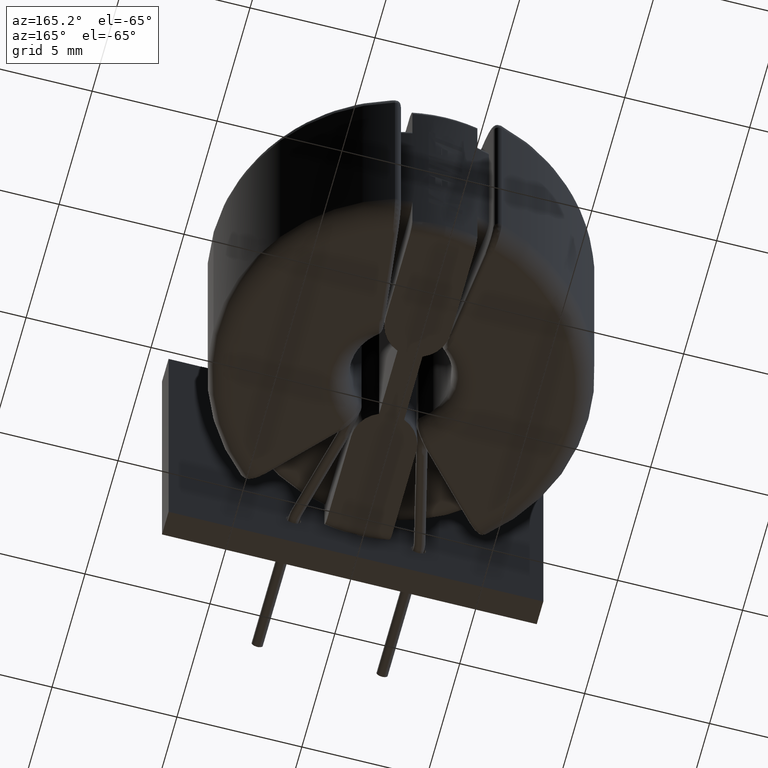
[diagram: clean part render]
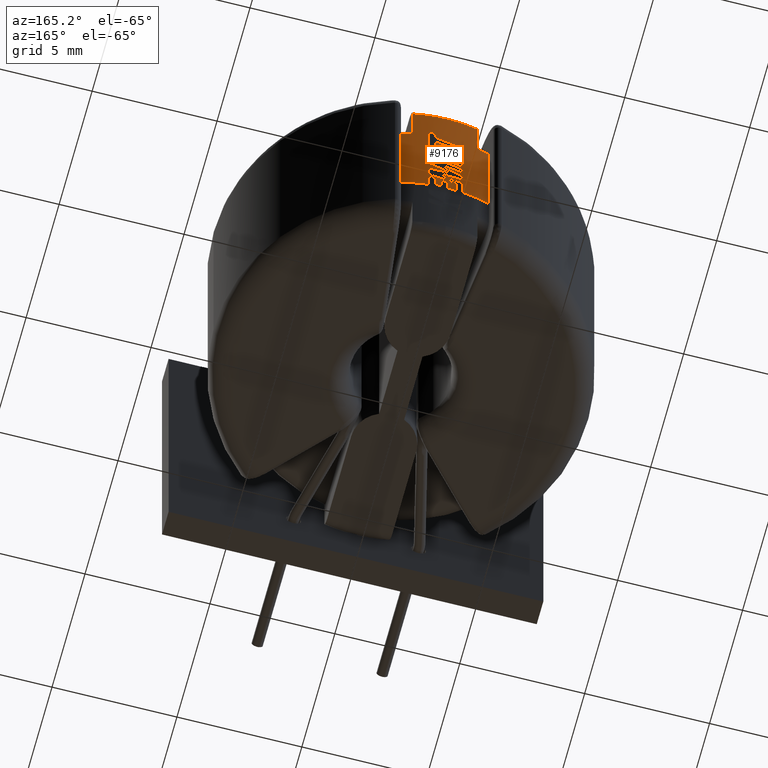
[diagram: same view with one face highlighted and labeled with its STEP entity id]
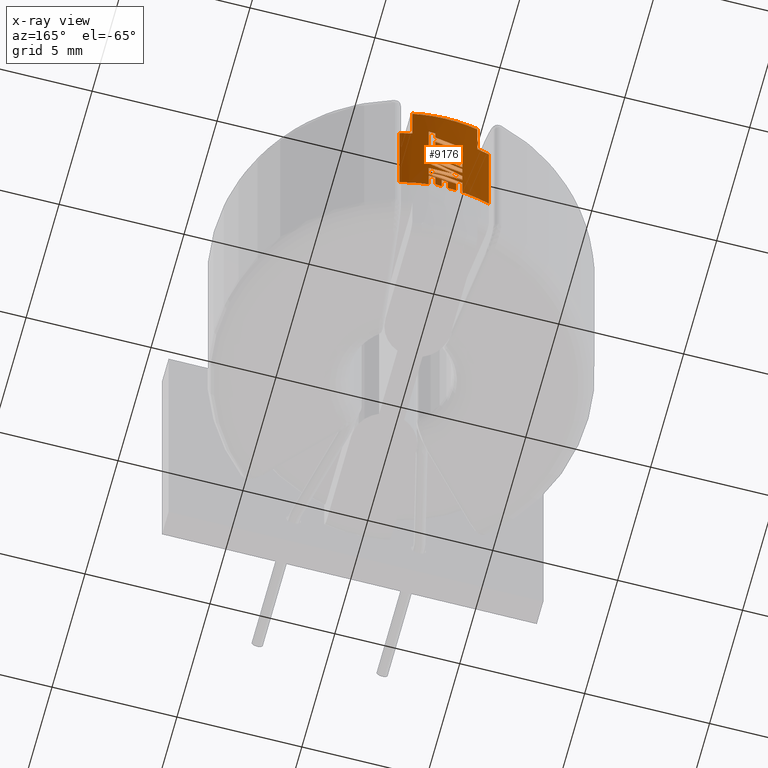
[diagram: x-ray of the same camera — body ghosted, the highlighted face saturated]
A machine part, auxiliary view. The second image highlights one B-rep face of the part: STEP entity #9176.
The next image is the same camera in x-ray: the body ghosted, the highlighted face saturated — about 0% of this face is hidden behind the body in this view.
In plain terms, the highlighted cylindrical surface (partial cylindrical patch) has radius 6.8 mm, axis along (0, 0, -1).
Its self-contained STEP definition (entity closure, byte-faithful):
#26 = DIRECTION ( 'NONE',  ( 0.0000000000000000000, 0.0000000000000000000, -1.000000000000000000 ) ) ;
#48 = CARTESIAN_POINT ( 'NONE',  ( 1.300999999999999046, 6.674383791781830055, 4.899999999999999467 ) ) ;
#51 = VERTEX_POINT ( 'NONE', #4222 ) ;
#58 = EDGE_CURVE ( 'NONE', #9147, #8497, #11557, .T. ) ;
#101 = CARTESIAN_POINT ( 'NONE',  ( 0.0000000000000000000, 0.0000000000000000000, 4.899999999999999467 ) ) ;
#152 = CARTESIAN_POINT ( 'NONE',  ( 0.1657448231678141648, 6.797979747954023821, 1.505122785420933695 ) ) ;
#158 = EDGE_CURVE ( 'NONE', #11961, #206, #3040, .T. ) ;
#206 = VERTEX_POINT ( 'NONE', #610 ) ;
#230 = CARTESIAN_POINT ( 'NONE',  ( 0.6703702798222870296, 6.766875474540002600, -1.399999999999999689 ) ) ;
#231 = EDGE_CURVE ( 'NONE', #5390, #2262, #324, .T. ) ;
#233 = EDGE_CURVE ( 'NONE', #2392, #4481, #8398, .T. ) ;
#240 = VERTEX_POINT ( 'NONE', #5614 ) ;
#324 =( BOUNDED_CURVE ( )  B_SPLINE_CURVE ( 3, ( #8632, #3724, #10489, #6632 ),
 .UNSPECIFIED., .F., .T. ) 
 B_SPLINE_CURVE_WITH_KNOTS ( ( 4, 4 ),
 ( 4.634515606831258516, 4.811133233297992362 ),
 .UNSPECIFIED. ) 
 CURVE ( )  GEOMETRIC_REPRESENTATION_ITEM ( )  RATIONAL_B_SPLINE_CURVE ( ( 1.000000000000000000, 0.9974022067229096900, 0.9974022067229096900, 1.000000000000000000 ) ) 
 REPRESENTATION_ITEM ( '' )  );
#354 = ORIENTED_EDGE ( 'NONE', *, *, #4188, .T. ) ;
#367 = CARTESIAN_POINT ( 'NONE',  ( 0.4133938508345821328, 6.787422598018500786, 2.192089153865898865 ) ) ;
#410 = CARTESIAN_POINT ( 'NONE',  ( -0.6703702798221423675, 6.766875474540016810, 0.7237001719797913069 ) ) ;
#418 = CARTESIAN_POINT ( 'NONE',  ( 0.4114982032729581629, 6.787538671728002626, 2.981526483648589743 ) ) ;
#458 = CARTESIAN_POINT ( 'NONE',  ( -0.6703702798221283787, 6.766875474540016810, 2.670566904199611624 ) ) ;
#491 = VECTOR ( 'NONE', #4505, 1000.000000000000000 ) ;
#506 = ORIENTED_EDGE ( 'NONE', *, *, #10479, .T. ) ;
#532 = CARTESIAN_POINT ( 'NONE',  ( 0.6703702798222002102, 6.766875474540003488, 0.09763589896193183848 ) ) ;
#545 = ORIENTED_EDGE ( 'NONE', *, *, #5762, .T. ) ;
#601 = CARTESIAN_POINT ( 'NONE',  ( 0.4114884892363169788, 6.787538377300029957, 3.103887281059684700 ) ) ;
#604 = CARTESIAN_POINT ( 'NONE',  ( -0.6703702798221470305, 6.766875474540023916, 0.3829972708428619477 ) ) ;
#610 = CARTESIAN_POINT ( 'NONE',  ( -0.4152446551201203206, 6.787309619900525171, 1.970416612737246442 ) ) ;
#635 = CARTESIAN_POINT ( 'NONE',  ( 0.6703702798222870296, 6.766875474540002600, 3.599999999999987210 ) ) ;
#662 = EDGE_CURVE ( 'NONE', #9083, #11961, #9734, .T. ) ;
#750 = CARTESIAN_POINT ( 'NONE',  ( 0.4151223552751882595, 6.787317101045950096, 1.577687358616442603 ) ) ;
#846 = EDGE_CURVE ( 'NONE', #9556, #8904, #6047, .T. ) ;
#856 = ORIENTED_EDGE ( 'NONE', *, *, #158, .T. ) ;
#857 = DIRECTION ( 'NONE',  ( -6.576008990187235647E-32, 1.184628465511692322E-16, 1.000000000000000000 ) ) ;
#877 = DIRECTION ( 'NONE',  ( -0.0000000000000000000, -0.0000000000000000000, 1.000000000000000000 ) ) ;
#899 = CARTESIAN_POINT ( 'NONE',  ( 0.0000000000000000000, 0.0000000000000000000, 3.100000000000000089 ) ) ;
#980 = VERTEX_POINT ( 'NONE', #11358 ) ;
#986 = CARTESIAN_POINT ( 'NONE',  ( 0.0000000000000000000, 0.0000000000000000000, -1.399999999999998579 ) ) ;
#987 = CARTESIAN_POINT ( 'NONE',  ( 0.4151671985522907837, 6.787314358216084642, -0.6795519127347516841 ) ) ;
#1057 = CARTESIAN_POINT ( 'NONE',  ( 0.5854358807702398915, 6.775289623296438357, -0.6311920275905625877 ) ) ;
#1067 = ORIENTED_EDGE ( 'NONE', *, *, #3467, .T. ) ;
#1126 = VERTEX_POINT ( 'NONE', #3302 ) ;
#1163 = VERTEX_POINT ( 'NONE', #1327 ) ;
#1182 = EDGE_CURVE ( 'NONE', #8036, #9552, #7076, .T. ) ;
#1197 = CARTESIAN_POINT ( 'NONE',  ( 0.6703702798220854131, 6.766875474540022140, 3.600000000000043610 ) ) ;
#1204 = ORIENTED_EDGE ( 'NONE', *, *, #6156, .T. ) ;
#1218 = CARTESIAN_POINT ( 'NONE',  ( 1.790637403355226587, 6.560001348300576574, 3.099999999999999201 ) ) ;
#1259 = VECTOR ( 'NONE', #10645, 1000.000000000000000 ) ;
#1264 = ORIENTED_EDGE ( 'NONE', *, *, #5170, .T. ) ;
#1327 = CARTESIAN_POINT ( 'NONE',  ( -0.6703702798221379267, 6.766875474540020363, 0.8850544308041168318 ) ) ;
#1369 = CARTESIAN_POINT ( 'NONE',  ( -0.6703702798221378156, 6.766875474540023916, 1.898023259321389489 ) ) ;
#1381 = CARTESIAN_POINT ( 'NONE',  ( 1.300999999999999046, 6.674383791781830055, 3.100000000000000089 ) ) ;
#1385 = EDGE_CURVE ( 'NONE', #10204, #12141, #9432, .T. ) ;
#1389 = CARTESIAN_POINT ( 'NONE',  ( 0.3094131752362639931, 6.802634210771450363, -0.5770906042204058117 ) ) ;
#1411 = CARTESIAN_POINT ( 'NONE',  ( 0.6703702798222188619, 6.766875474540003488, 1.270698448461876628 ) ) ;
#1512 =( BOUNDED_CURVE ( )  B_SPLINE_CURVE ( 3, ( #2813, #1835, #5900, #8792 ),
 .UNSPECIFIED., .F., .F. ) 
 B_SPLINE_CURVE_WITH_KNOTS ( ( 4, 4 ),
 ( 1.472052073881594092, 1.648669700348327050 ),
 .UNSPECIFIED. ) 
 CURVE ( )  GEOMETRIC_REPRESENTATION_ITEM ( )  RATIONAL_B_SPLINE_CURVE ( ( 1.000000000000000000, 0.9974022067229098010, 0.9974022067229098010, 1.000000000000000000 ) ) 
 REPRESENTATION_ITEM ( '' )  );
#1532 = VERTEX_POINT ( 'NONE', #532 ) ;
#1567 = EDGE_CURVE ( 'NONE', #11969, #1126, #8018, .T. ) ;
#1595 = CARTESIAN_POINT ( 'NONE',  ( 0.1657448231678141648, 6.797979747954023821, 1.505122785420933695 ) ) ;
#1718 = CARTESIAN_POINT ( 'NONE',  ( -1.790637403355226587, 6.560001348300575685, 3.099999999999999201 ) ) ;
#1719 = DIRECTION ( 'NONE',  ( -0.0000000000000000000, -0.0000000000000000000, -1.000000000000000000 ) ) ;
#1728 = VERTEX_POINT ( 'NONE', #9654 ) ;
#1740 = EDGE_CURVE ( 'NONE', #9147, #4124, #1930, .T. ) ;
#1765 = CARTESIAN_POINT ( 'NONE',  ( 0.4114982032762805053, 6.787537788381037274, 2.599690068830195155 ) ) ;
#1779 = DIRECTION ( 'NONE',  ( 0.0000000000000000000, 0.0000000000000000000, -1.000000000000000000 ) ) ;
#1798 = ORIENTED_EDGE ( 'NONE', *, *, #58, .T. ) ;
#1835 = CARTESIAN_POINT ( 'NONE',  ( -0.2714684467850607685, 6.806393260029164338, 0.4975487579555347151 ) ) ;
#1847 =( BOUNDED_CURVE ( )  B_SPLINE_CURVE ( 3, ( #3482, #11549, #12477, #7595 ),
 .UNSPECIFIED., .F., .T. ) 
 B_SPLINE_CURVE_WITH_KNOTS ( ( 4, 4 ),
 ( 4.613644727471385210, 4.651841837245695999 ),
 .UNSPECIFIED. ) 
 CURVE ( )  GEOMETRIC_REPRESENTATION_ITEM ( )  RATIONAL_B_SPLINE_CURVE ( ( 1.000000000000000000, 0.9998784187627531850, 0.9998784187627531850, 1.000000000000000000 ) ) 
 REPRESENTATION_ITEM ( '' )  );
#1852 = CARTESIAN_POINT ( 'NONE',  ( -0.08206727095332713717, 6.799504758659879577, -0.8583053624838021811 ) ) ;
#1874 = ORIENTED_EDGE ( 'NONE', *, *, #1385, .T. ) ;
#1892 = CARTESIAN_POINT ( 'NONE',  ( 1.790637403355225032, 6.560001348300566804, 3.600000000000000089 ) ) ;
#1904 =( BOUNDED_CURVE ( )  B_SPLINE_CURVE ( 3, ( #2087, #5954, #8958, #9945 ),
 .UNSPECIFIED., .F., .T. ) 
 B_SPLINE_CURVE_WITH_KNOTS ( ( 4, 4 ),
 ( 1.472052073881591427, 1.647821850982495784 ),
 .UNSPECIFIED. ) 
 CURVE ( )  GEOMETRIC_REPRESENTATION_ITEM ( )  RATIONAL_B_SPLINE_CURVE ( ( 1.000000000000000000, 0.9974270721496388825, 0.9974270721496388825, 1.000000000000000000 ) ) 
 REPRESENTATION_ITEM ( '' )  );
#1925 = CARTESIAN_POINT ( 'NONE',  ( 0.2489760919596331334, 6.795949897025361786, -1.338765766515399580 ) ) ;
#1930 = LINE ( 'NONE', #1892, #4475 ) ;
#1963 = EDGE_CURVE ( 'NONE', #3882, #51, #11145, .T. ) ;
#2087 = CARTESIAN_POINT ( 'NONE',  ( -0.6703702798221470305, 6.766875474540016810, -0.2631657934942448485 ) ) ;
#2110 = CARTESIAN_POINT ( 'NONE',  ( -0.6703702798221470305, 6.766875474540023916, 0.09426364943040335675 ) ) ;
#2149 = VECTOR ( 'NONE', #11265, 1000.000000000000000 ) ;
#2214 = VERTEX_POINT ( 'NONE', #48 ) ;
#2262 = VERTEX_POINT ( 'NONE', #2110 ) ;
#2264 = EDGE_CURVE ( 'NONE', #10316, #11611, #6586, .T. ) ;
#2265 = B_SPLINE_CURVE_WITH_KNOTS ( 'NONE', 3,
 ( #2542, #12099, #601, #10346 ),
 .UNSPECIFIED., .F., .F.,
 ( 4, 4 ),
 ( 2.000000006326825159E-07, 0.0003672823933821881231 ),
 .UNSPECIFIED. ) ;
#2278 = DIRECTION ( 'NONE',  ( -6.576008990187235647E-32, 1.184628465511692322E-16, 1.000000000000000000 ) ) ;
#2348 = ORIENTED_EDGE ( 'NONE', *, *, #11003, .T. ) ;
#2392 = VERTEX_POINT ( 'NONE', #6258 ) ;
#2457 = DIRECTION ( 'NONE',  ( -0.0000000000000000000, -0.0000000000000000000, 1.000000000000000000 ) ) ;
#2529 = LINE ( 'NONE', #5876, #3296 ) ;
#2542 = CARTESIAN_POINT ( 'NONE',  ( 0.4114690611629806538, 6.787539555074856068, 3.348608875873371638 ) ) ;
#2562 = ORIENTED_EDGE ( 'NONE', *, *, #4899, .T. ) ;
#2567 = EDGE_CURVE ( 'NONE', #5903, #1163, #7189, .T. ) ;
#2605 = CARTESIAN_POINT ( 'NONE',  ( 0.0005414521473948088071, 6.800501812519334166, 2.033299096523746741 ) ) ;
#2624 = CARTESIAN_POINT ( 'NONE',  ( -0.6703702798221331527, 6.766875474540016810, -1.399999999999999245 ) ) ;
#2643 = CARTESIAN_POINT ( 'NONE',  ( 0.4127619736790560934, 6.787461083043823784, 2.327954972180605875 ) ) ;
#2684 = CARTESIAN_POINT ( 'NONE',  ( 0.3519906907306294408, 6.798416207782705278, 0.3632274206541954431 ) ) ;
#2695 = CARTESIAN_POINT ( 'NONE',  ( 0.4133938508345821328, 6.787422598018500786, 2.192089153865898865 ) ) ;
#2729 = CARTESIAN_POINT ( 'NONE',  ( 0.03218006170106237074, 6.807446277733856022, 0.2046118142603328693 ) ) ;
#2732 = VERTEX_POINT ( 'NONE', #11388 ) ;
#2749 = CARTESIAN_POINT ( 'NONE',  ( 0.4114982032762805053, 6.787537788381037274, 2.599690068830195155 ) ) ;
#2788 =( BOUNDED_CURVE ( )  B_SPLINE_CURVE ( 3, ( #5179, #11943, #3121, #4223 ),
 .UNSPECIFIED., .F., .T. ) 
 B_SPLINE_CURVE_WITH_KNOTS ( ( 4, 4 ),
 ( 4.773492386626295492, 4.811133233297991474 ),
 .UNSPECIFIED. ) 
 CURVE ( )  GEOMETRIC_REPRESENTATION_ITEM ( )  RATIONAL_B_SPLINE_CURVE ( ( 1.000000000000000000, 0.9998819340402104183, 0.9998819340402104183, 1.000000000000000000 ) ) 
 REPRESENTATION_ITEM ( '' )  );
#2811 = EDGE_CURVE ( 'NONE', #4090, #4910, #5059, .T. ) ;
#2813 = CARTESIAN_POINT ( 'NONE',  ( -0.6703702798221470305, 6.766875474540023916, 0.3829972708428619477 ) ) ;
#2877 = CARTESIAN_POINT ( 'NONE',  ( -0.08206727095612345591, 6.799504758659840498, 3.600000000000000089 ) ) ;
#2940 = CARTESIAN_POINT ( 'NONE',  ( 0.5003581361365246893, 6.782103389483500777, -0.6553558955739131608 ) ) ;
#2941 = ORIENTED_EDGE ( 'NONE', *, *, #11224, .T. ) ;
#2942 = VECTOR ( 'NONE', #1779, 1000.000000000000000 ) ;
#2985 = ORIENTED_EDGE ( 'NONE', *, *, #662, .T. ) ;
#3014 = CIRCLE ( 'NONE', #9377, 6.800000000000019362 ) ;
#3040 = LINE ( 'NONE', #4415, #491 ) ;
#3070 =( BOUNDED_CURVE ( )  B_SPLINE_CURVE ( 3, ( #8270, #8354, #4450, #3454 ),
 .UNSPECIFIED., .F., .T. ) 
 B_SPLINE_CURVE_WITH_KNOTS ( ( 4, 4 ),
 ( 1.472052073881594980, 1.669540579708211014 ),
 .UNSPECIFIED. ) 
 CURVE ( )  GEOMETRIC_REPRESENTATION_ITEM ( )  RATIONAL_B_SPLINE_CURVE ( ( 1.000000000000000000, 0.9967524975039229185, 0.9967524975039229185, 1.000000000000000000 ) ) 
 REPRESENTATION_ITEM ( '' )  );
#3119 = CIRCLE ( 'NONE', #8342, 6.800000000000019362 ) ;
#3121 = CARTESIAN_POINT ( 'NONE',  ( -0.5854616264467014108, 6.775287072763862106, 1.922116574757855023 ) ) ;
#3182 = CARTESIAN_POINT ( 'NONE',  ( -0.6703702798221196080, 6.766875474540019475, 3.600000000000000089 ) ) ;
#3188 = DIRECTION ( 'NONE',  ( -0.0000000000000000000, -0.0000000000000000000, -1.000000000000000000 ) ) ;
#3199 = DIRECTION ( 'NONE',  ( -6.576008990187235647E-32, 1.184628465511692322E-16, 1.000000000000000000 ) ) ;
#3207 = LINE ( 'NONE', #6210, #1259 ) ;
#3246 = DIRECTION ( 'NONE',  ( 0.0000000000000000000, 0.0000000000000000000, -1.000000000000000000 ) ) ;
#3290 =( BOUNDED_CURVE ( )  B_SPLINE_CURVE ( 3, ( #9533, #12441, #9621, #2749 ),
 .UNSPECIFIED., .F., .F. ) 
 B_SPLINE_CURVE_WITH_KNOTS ( ( 4, 4 ),
 ( 1.472052073881595868, 1.631347763406784113 ),
 .UNSPECIFIED. ) 
 CURVE ( )  GEOMETRIC_REPRESENTATION_ITEM ( )  RATIONAL_B_SPLINE_CURVE ( ( 1.000000000000000000, 0.9978865245811500140, 0.9978865245811500140, 1.000000000000000000 ) ) 
 REPRESENTATION_ITEM ( '' )  );
#3296 = VECTOR ( 'NONE', #26, 1000.000000000000000 ) ;
#3302 = CARTESIAN_POINT ( 'NONE',  ( -0.08206727095614173295, 6.799504758659841386, 2.009699322137072475 ) ) ;
#3386 = LINE ( 'NONE', #8386, #8269 ) ;
#3410 = CARTESIAN_POINT ( 'NONE',  ( -0.2241848006403508731, 6.811077482639184666, 0.8519817871776028673 ) ) ;
#3454 = CARTESIAN_POINT ( 'NONE',  ( 0.6703702798222188619, 6.766875474540003488, 1.270698448461876628 ) ) ;
#3467 = EDGE_CURVE ( 'NONE', #4276, #3506, #5239, .T. ) ;
#3482 = CARTESIAN_POINT ( 'NONE',  ( 0.6703702798221541359, 6.766875474540023916, 3.423012609376339555 ) ) ;
#3489 = CARTESIAN_POINT ( 'NONE',  ( 0.6703702798221541359, 6.766875474540023916, 3.423012609376339555 ) ) ;
#3506 = VERTEX_POINT ( 'NONE', #3489 ) ;
#3517 = EDGE_CURVE ( 'NONE', #6967, #8705, #3386, .T. ) ;
#3553 = CARTESIAN_POINT ( 'NONE',  ( -1.790637403355225032, 6.560001348300566804, -1.399999999999999245 ) ) ;
#3572 = VERTEX_POINT ( 'NONE', #5376 ) ;
#3610 = VECTOR ( 'NONE', #4528, 1000.000000000000000 ) ;
#3626 =( BOUNDED_CURVE ( )  B_SPLINE_CURVE ( 3, ( #12070, #9183, #1389, #12108 ),
 .UNSPECIFIED., .F., .F. ) 
 B_SPLINE_CURVE_WITH_KNOTS ( ( 4, 4 ),
 ( 1.509685712992849149, 1.669540579708206574 ),
 .UNSPECIFIED. ) 
 CURVE ( )  GEOMETRIC_REPRESENTATION_ITEM ( )  RATIONAL_B_SPLINE_CURVE ( ( 1.000000000000000000, 0.9978716685460599090, 0.9978716685460599090, 1.000000000000000000 ) ) 
 REPRESENTATION_ITEM ( '' )  );
#3632 = ORIENTED_EDGE ( 'NONE', *, *, #2811, .T. ) ;
#3646 = ORIENTED_EDGE ( 'NONE', *, *, #11810, .T. ) ;
#3653 = CARTESIAN_POINT ( 'NONE',  ( 0.1657448231678324280, 6.797979747954023821, 3.600000000000000089 ) ) ;
#3724 = CARTESIAN_POINT ( 'NONE',  ( 0.1293642242125388753, 6.810576277031495707, 0.5164467030518856694 ) ) ;
#3725 = VERTEX_POINT ( 'NONE', #410 ) ;
#3797 =( BOUNDED_CURVE ( )  B_SPLINE_CURVE ( 3, ( #4763, #12387, #6590, #8543 ),
 .UNSPECIFIED., .F., .T. ) 
 B_SPLINE_CURVE_WITH_KNOTS ( ( 4, 4 ),
 ( 4.688005731007922172, 4.724457989696520421 ),
 .UNSPECIFIED. ) 
 CURVE ( )  GEOMETRIC_REPRESENTATION_ITEM ( )  RATIONAL_B_SPLINE_CURVE ( ( 1.000000000000000000, 0.9998892724683239308, 0.9998892724683239308, 1.000000000000000000 ) ) 
 REPRESENTATION_ITEM ( '' )  );
#3841 = CARTESIAN_POINT ( 'NONE',  ( 0.4151671985522907837, 6.787314358216084642, -1.290407012552380328 ) ) ;
#3873 = EDGE_CURVE ( 'NONE', #8853, #6243, #12167, .T. ) ;
#3882 = VERTEX_POINT ( 'NONE', #6722 ) ;
#3920 = VERTEX_POINT ( 'NONE', #604 ) ;
#3934 = VECTOR ( 'NONE', #10636, 1000.000000000000000 ) ;
#4008 =( BOUNDED_CURVE ( )  B_SPLINE_CURVE ( 3, ( #8414, #6544, #11407, #750 ),
 .UNSPECIFIED., .F., .F. ) 
 B_SPLINE_CURVE_WITH_KNOTS ( ( 4, 4 ),
 ( 4.773219702901219108, 4.773474367737464696 ),
 .UNSPECIFIED. ) 
 CURVE ( )  GEOMETRIC_REPRESENTATION_ITEM ( )  RATIONAL_B_SPLINE_CURVE ( ( 1.000000000000000000, 0.9999999945954850533, 0.9999999945954850533, 1.000000000000000000 ) ) 
 REPRESENTATION_ITEM ( '' )  );
#4076 = CARTESIAN_POINT ( 'NONE',  ( 0.1657896664456502689, 6.797978654460444581, 3.600000000000000089 ) ) ;
#4090 = VERTEX_POINT ( 'NONE', #1852 ) ;
#4091 = CARTESIAN_POINT ( 'NONE',  ( 0.0000000000000000000, 0.0000000000000000000, 4.899999999999999467 ) ) ;
#4124 = VERTEX_POINT ( 'NONE', #1218 ) ;
#4188 = EDGE_CURVE ( 'NONE', #12141, #6967, #6460, .T. ) ;
#4197 = ORIENTED_EDGE ( 'NONE', *, *, #10212, .T. ) ;
#4198 = VERTEX_POINT ( 'NONE', #9974 ) ;
#4207 = CARTESIAN_POINT ( 'NONE',  ( -0.1932149447257128505, 6.798163251214348612, 1.402678183447211069 ) ) ;
#4222 = CARTESIAN_POINT ( 'NONE',  ( 0.6703702798222140880, 6.766875474540009705, 1.109172968781247937 ) ) ;
#4223 = CARTESIAN_POINT ( 'NONE',  ( -0.6703702798221378156, 6.766875474540023916, 1.898023259321389489 ) ) ;
#4276 = VERTEX_POINT ( 'NONE', #1411 ) ;
#4385 = CARTESIAN_POINT ( 'NONE',  ( 0.05070808307212577859, 6.809410884782006512, 2.877825205905440775 ) ) ;
#4415 = CARTESIAN_POINT ( 'NONE',  ( -0.4152446551200899560, 6.787309619900524282, 3.600000000000002753 ) ) ;
#4448 = ORIENTED_EDGE ( 'NONE', *, *, #10846, .T. ) ;
#4450 = CARTESIAN_POINT ( 'NONE',  ( 0.2241848006404323079, 6.811077482639182890, 1.142359852620586036 ) ) ;
#4475 = VECTOR ( 'NONE', #877, 1000.000000000000000 ) ;
#4481 = VERTEX_POINT ( 'NONE', #367 ) ;
#4494 = VECTOR ( 'NONE', #4769, 1000.000000000000000 ) ;
#4505 = DIRECTION ( 'NONE',  ( -0.0000000000000000000, -0.0000000000000000000, 1.000000000000000000 ) ) ;
#4507 = CYLINDRICAL_SURFACE ( 'NONE', #5164, 6.800000000000019362 ) ;
#4528 = DIRECTION ( 'NONE',  ( 0.0000000000000000000, 0.0000000000000000000, -1.000000000000000000 ) ) ;
#4603 = DIRECTION ( 'NONE',  ( -0.0000000000000000000, -0.0000000000000000000, -1.000000000000000000 ) ) ;
#4609 = VECTOR ( 'NONE', #7761, 1000.000000000000000 ) ;
#4623 = CARTESIAN_POINT ( 'NONE',  ( -1.300999999999999490, 6.674383791781830055, 3.100000000000000089 ) ) ;
#4749 = DIRECTION ( 'NONE',  ( -5.551115123125774814E-16, 1.000000000000000000, -1.275531967630001548E-16 ) ) ;
#4753 = CARTESIAN_POINT ( 'NONE',  ( -0.4152446551201250391, 6.787309619900528723, 1.339292352362078997 ) ) ;
#4763 = CARTESIAN_POINT ( 'NONE',  ( 0.1657896664456318669, 6.797978654460443693, -0.7875100603410228883 ) ) ;
#4765 = CARTESIAN_POINT ( 'NONE',  ( 0.3321112713423204910, 6.792394732396955348, -1.314574859024228326 ) ) ;
#4769 = DIRECTION ( 'NONE',  ( -0.0000000000000000000, -0.0000000000000000000, 1.000000000000000000 ) ) ;
#4795 = CARTESIAN_POINT ( 'NONE',  ( -0.08206727095330869359, 6.799504758659874248, -1.399999999999999245 ) ) ;
#4867 = EDGE_CURVE ( 'NONE', #980, #3882, #8715, .T. ) ;
#4896 = ORIENTED_EDGE ( 'NONE', *, *, #11514, .T. ) ;
#4899 = EDGE_CURVE ( 'NONE', #5488, #4124, #3119, .T. ) ;
#4910 = VERTEX_POINT ( 'NONE', #4795 ) ;
#4922 = DIRECTION ( 'NONE',  ( -0.0000000000000000000, -0.0000000000000000000, 1.000000000000000000 ) ) ;
#5025 = CARTESIAN_POINT ( 'NONE',  ( -0.2733883192480867086, 6.806203065094277527, -0.4249994308079859118 ) ) ;
#5059 = LINE ( 'NONE', #11636, #4609 ) ;
#5160 = CARTESIAN_POINT ( 'NONE',  ( 0.0000000000000000000, 0.0000000000000000000, -1.399999999999998579 ) ) ;
#5164 = AXIS2_PLACEMENT_3D ( 'NONE', #9953, #3246, #7139 ) ;
#5170 = EDGE_CURVE ( 'NONE', #9552, #1728, #11808, .T. ) ;
#5179 = CARTESIAN_POINT ( 'NONE',  ( -0.4152446551201203206, 6.787309619900525171, 1.970416612737246442 ) ) ;
#5181 = ORIENTED_EDGE ( 'NONE', *, *, #846, .F. ) ;
#5193 = ORIENTED_EDGE ( 'NONE', *, *, #3517, .T. ) ;
#5239 = LINE ( 'NONE', #1197, #10568 ) ;
#5314 = CARTESIAN_POINT ( 'NONE',  ( 0.1657448231678141926, 6.797979747954023821, 2.080494624278301341 ) ) ;
#5340 = DIRECTION ( 'NONE',  ( 9.214851104388800863E-15, 1.000000000000000000, 0.0000000000000000000 ) ) ;
#5357 = VECTOR ( 'NONE', #9081, 1000.000000000000000 ) ;
#5374 = LINE ( 'NONE', #11027, #2149 ) ;
#5376 = CARTESIAN_POINT ( 'NONE',  ( 0.5232557993236768290, 6.779838004589363365, -0.1962596263430867738 ) ) ;
#5379 = ORIENTED_EDGE ( 'NONE', *, *, #231, .T. ) ;
#5390 = VERTEX_POINT ( 'NONE', #5445 ) ;
#5410 = ORIENTED_EDGE ( 'NONE', *, *, #2567, .T. ) ;
#5414 = FACE_OUTER_BOUND ( 'NONE', #11140, .T. ) ;
#5425 = CARTESIAN_POINT ( 'NONE',  ( 0.2241848006404265625, 6.811077482639182001, 0.9808913535834262731 ) ) ;
#5445 = CARTESIAN_POINT ( 'NONE',  ( 0.5290038919167789899, 6.779391925706680588, 0.7274180871905704393 ) ) ;
#5488 = VERTEX_POINT ( 'NONE', #1381 ) ;
#5571 = EDGE_CURVE ( 'NONE', #6062, #8036, #2265, .T. ) ;
#5589 = CARTESIAN_POINT ( 'NONE',  ( -1.300999999999999046, 6.674383791781829167, 3.600000000000000089 ) ) ;
#5593 = EDGE_CURVE ( 'NONE', #51, #3725, #5680, .T. ) ;
#5614 = CARTESIAN_POINT ( 'NONE',  ( -3.774758283725537759E-15, 6.800000000000018474, 4.899999999999999467 ) ) ;
#5621 = CARTESIAN_POINT ( 'NONE',  ( 0.0000000000000000000, 0.0000000000000000000, 3.100000000000000089 ) ) ;
#5680 =( BOUNDED_CURVE ( )  B_SPLINE_CURVE ( 3, ( #12277, #5425, #3410, #11263 ),
 .UNSPECIFIED., .F., .T. ) 
 B_SPLINE_CURVE_WITH_KNOTS ( ( 4, 4 ),
 ( 4.613644727471376328, 4.811133233297992362 ),
 .UNSPECIFIED. ) 
 CURVE ( )  GEOMETRIC_REPRESENTATION_ITEM ( )  RATIONAL_B_SPLINE_CURVE ( ( 1.000000000000000000, 0.9967524975039229185, 0.9967524975039229185, 1.000000000000000000 ) ) 
 REPRESENTATION_ITEM ( '' )  );
#5703 = CARTESIAN_POINT ( 'NONE',  ( 0.6703702798222764825, 6.766875474540003488, 3.599999999999988542 ) ) ;
#5734 = CARTESIAN_POINT ( 'NONE',  ( 0.4121300911555147994, 6.787499479831581084, 2.463821944718518342 ) ) ;
#5736 = EDGE_CURVE ( 'NONE', #7689, #6530, #6450, .T. ) ;
#5762 = EDGE_CURVE ( 'NONE', #3920, #5390, #1512, .T. ) ;
#5837 = EDGE_CURVE ( 'NONE', #2262, #4198, #9212, .T. ) ;
#5875 = CARTESIAN_POINT ( 'NONE',  ( -1.300999999999999490, 6.674383791781830055, 4.899999999999999467 ) ) ;
#5876 = CARTESIAN_POINT ( 'NONE',  ( 1.300999999999998602, 6.674383791781830055, 3.600000000000000089 ) ) ;
#5900 = CARTESIAN_POINT ( 'NONE',  ( 0.1293642242125361552, 6.810576277031498371, 0.6126547182278526682 ) ) ;
#5903 = VERTEX_POINT ( 'NONE', #1369 ) ;
#5934 = ORIENTED_EDGE ( 'NONE', *, *, #7660, .T. ) ;
#5954 = CARTESIAN_POINT ( 'NONE',  ( -0.2733883192480854318, 6.806203065094278415, -0.2409138153628951062 ) ) ;
#5956 = CARTESIAN_POINT ( 'NONE',  ( 0.2489312385748593814, 6.795951539835905386, 1.529328601713461744 ) ) ;
#6001 = DIRECTION ( 'NONE',  ( -0.0000000000000000000, -0.0000000000000000000, 1.000000000000000000 ) ) ;
#6047 = LINE ( 'NONE', #5589, #11044 ) ;
#6061 = CARTESIAN_POINT ( 'NONE',  ( -0.08206727095614176071, 6.799504758659841386, 1.434409016508021439 ) ) ;
#6062 = VERTEX_POINT ( 'NONE', #6816 ) ;
#6068 = DIRECTION ( 'NONE',  ( -5.551115123125774814E-16, 1.000000000000000000, 0.0000000000000000000 ) ) ;
#6148 = CARTESIAN_POINT ( 'NONE',  ( -0.6703702798220845249, 6.766875474540023028, 3.600000000000008971 ) ) ;
#6156 = EDGE_CURVE ( 'NONE', #4198, #3572, #1904, .T. ) ;
#6210 = CARTESIAN_POINT ( 'NONE',  ( -0.4152935750536378978, 6.787306626823276900, 3.600000000000000089 ) ) ;
#6243 = VERTEX_POINT ( 'NONE', #1595 ) ;
#6258 = CARTESIAN_POINT ( 'NONE',  ( 0.4114982032762805053, 6.787537788381037274, 2.599690068830195155 ) ) ;
#6315 = DIRECTION ( 'NONE',  ( -0.0000000000000000000, -0.0000000000000000000, 1.000000000000000000 ) ) ;
#6341 = AXIS2_PLACEMENT_3D ( 'NONE', #12028, #3199, #7179 ) ;
#6383 = CARTESIAN_POINT ( 'NONE',  ( -0.08206727095614173295, 6.799504758659841386, 2.009699322137072475 ) ) ;
#6405 = LINE ( 'NONE', #635, #12461 ) ;
#6450 =( BOUNDED_CURVE ( )  B_SPLINE_CURVE ( 3, ( #11719, #1057, #2940, #987 ),
 .UNSPECIFIED., .F., .F. ) 
 B_SPLINE_CURVE_WITH_KNOTS ( ( 4, 4 ),
 ( 4.613644727471379881, 4.651296986108224729 ),
 .UNSPECIFIED. ) 
 CURVE ( )  GEOMETRIC_REPRESENTATION_ITEM ( )  RATIONAL_B_SPLINE_CURVE ( ( 1.000000000000000000, 0.9998818624409141487, 0.9998818624409141487, 1.000000000000000000 ) ) 
 REPRESENTATION_ITEM ( '' )  );
#6460 = CIRCLE ( 'NONE', #10275, 6.800000000000019362 ) ;
#6530 = VERTEX_POINT ( 'NONE', #7852 ) ;
#6544 = CARTESIAN_POINT ( 'NONE',  ( 0.4139700234576371707, 6.787387505725959613, 1.987286964382801502 ) ) ;
#6556 = LINE ( 'NONE', #3653, #6997 ) ;
#6586 = LINE ( 'NONE', #4076, #9019 ) ;
#6590 = CARTESIAN_POINT ( 'NONE',  ( 0.0005564057461872313039, 6.800501993003188694, -0.8347055866717052464 ) ) ;
#6595 = CARTESIAN_POINT ( 'NONE',  ( 0.03218006170105781882, 6.807446277733857798, 0.06328185432570962443 ) ) ;
#6606 = CARTESIAN_POINT ( 'NONE',  ( -0.6703702798221331527, 6.766875474540016810, 3.600000000000000089 ) ) ;
#6632 = CARTESIAN_POINT ( 'NONE',  ( -0.6703702798221470305, 6.766875474540023916, 0.09426364943040335675 ) ) ;
#6708 = ORIENTED_EDGE ( 'NONE', *, *, #1567, .T. ) ;
#6722 = CARTESIAN_POINT ( 'NONE',  ( 0.6703702798222046511, 6.766875474540009705, 0.5211332780687184529 ) ) ;
#6745 = CARTESIAN_POINT ( 'NONE',  ( -0.4152935750536563275, 6.787306626823276900, -0.7853983497317109652 ) ) ;
#6778 = EDGE_CURVE ( 'NONE', #2214, #5488, #2529, .T. ) ;
#6811 = ORIENTED_EDGE ( 'NONE', *, *, #8029, .T. ) ;
#6816 = CARTESIAN_POINT ( 'NONE',  ( 0.4114690611629806538, 6.787539555074856068, 3.348608875873371638 ) ) ;
#6859 = CIRCLE ( 'NONE', #7513, 6.800000000000019362 ) ;
#6905 = EDGE_CURVE ( 'NONE', #10455, #10300, #3626, .T. ) ;
#6932 = CARTESIAN_POINT ( 'NONE',  ( 0.6703702798221907733, 6.766875474540003488, -0.6070688727658430928 ) ) ;
#6967 = VERTEX_POINT ( 'NONE', #3553 ) ;
#6983 = EDGE_CURVE ( 'NONE', #4481, #8853, #4008, .T. ) ;
#6997 = VECTOR ( 'NONE', #10470, 1000.000000000000000 ) ;
#7056 =( BOUNDED_CURVE ( )  B_SPLINE_CURVE ( 3, ( #3841, #4765, #1925, #11612 ),
 .UNSPECIFIED., .F., .F. ) 
 B_SPLINE_CURVE_WITH_KNOTS ( ( 4, 4 ),
 ( 4.651296986108224729, 4.688005731007922172 ),
 .UNSPECIFIED. ) 
 CURVE ( )  GEOMETRIC_REPRESENTATION_ITEM ( )  RATIONAL_B_SPLINE_CURVE ( ( 1.000000000000000000, 0.9998877088231259425, 0.9998877088231259425, 1.000000000000000000 ) ) 
 REPRESENTATION_ITEM ( '' )  );
#7076 =( BOUNDED_CURVE ( )  B_SPLINE_CURVE ( 3, ( #418, #4385, #11084, #458 ),
 .UNSPECIFIED., .F., .F. ) 
 B_SPLINE_CURVE_WITH_KNOTS ( ( 4, 4 ),
 ( 4.651837551036502205, 4.811133233297989698 ),
 .UNSPECIFIED. ) 
 CURVE ( )  GEOMETRIC_REPRESENTATION_ITEM ( )  RATIONAL_B_SPLINE_CURVE ( ( 1.000000000000000000, 0.9978865247737923605, 0.9978865247737923605, 1.000000000000000000 ) ) 
 REPRESENTATION_ITEM ( '' )  );
#7092 = CARTESIAN_POINT ( 'NONE',  ( 1.790637403355225032, 6.560001348300566804, -1.399999999999999245 ) ) ;
#7139 = DIRECTION ( 'NONE',  ( 5.551115123125774814E-16, -1.000000000000000000, 0.0000000000000000000 ) ) ;
#7178 = ORIENTED_EDGE ( 'NONE', *, *, #10658, .T. ) ;
#7179 = DIRECTION ( 'NONE',  ( -5.551115123125774814E-16, 1.000000000000000000, -1.275531967630001548E-16 ) ) ;
#7189 = LINE ( 'NONE', #3182, #12339 ) ;
#7235 = CARTESIAN_POINT ( 'NONE',  ( 0.08315462776469624562, 6.799993419344646739, 2.056900142910722984 ) ) ;
#7513 = AXIS2_PLACEMENT_3D ( 'NONE', #986, #857, #4749 ) ;
#7595 = CARTESIAN_POINT ( 'NONE',  ( 0.4114690611629806538, 6.787539555074856068, 3.348608875873371638 ) ) ;
#7639 = EDGE_CURVE ( 'NONE', #1126, #9083, #9343, .T. ) ;
#7660 = EDGE_CURVE ( 'NONE', #1728, #2392, #3290, .T. ) ;
#7689 = VERTEX_POINT ( 'NONE', #6932 ) ;
#7756 = CARTESIAN_POINT ( 'NONE',  ( -0.08206727095614176071, 6.799504758659841386, 1.434409016508021439 ) ) ;
#7757 = EDGE_CURVE ( 'NONE', #3572, #10204, #12490, .T. ) ;
#7761 = DIRECTION ( 'NONE',  ( 0.0000000000000000000, 0.0000000000000000000, -1.000000000000000000 ) ) ;
#7772 = ORIENTED_EDGE ( 'NONE', *, *, #8413, .T. ) ;
#7797 = CARTESIAN_POINT ( 'NONE',  ( -0.6703702798221518044, 6.766875474540023916, -0.5389845515424422917 ) ) ;
#7826 = CARTESIAN_POINT ( 'NONE',  ( 0.4151223552751882595, 6.787317101045950096, 1.577687358616442603 ) ) ;
#7852 = CARTESIAN_POINT ( 'NONE',  ( 0.4151671985522907837, 6.787314358216084642, -0.6795519127347516841 ) ) ;
#7880 = CARTESIAN_POINT ( 'NONE',  ( 0.5232557993236768290, 6.779838004589363365, -0.1962596263430867738 ) ) ;
#7922 = ORIENTED_EDGE ( 'NONE', *, *, #3873, .T. ) ;
#8018 =( BOUNDED_CURVE ( )  B_SPLINE_CURVE ( 3, ( #5314, #7235, #2605, #6383 ),
 .UNSPECIFIED., .F., .F. ) 
 B_SPLINE_CURVE_WITH_KNOTS ( ( 4, 4 ),
 ( 4.688012327567942172, 4.724457989696934312 ),
 .UNSPECIFIED. ) 
 CURVE ( )  GEOMETRIC_REPRESENTATION_ITEM ( )  RATIONAL_B_SPLINE_CURVE ( ( 1.000000000000000000, 0.9998893125390623249, 0.9998893125390623249, 1.000000000000000000 ) ) 
 REPRESENTATION_ITEM ( '' )  );
#8029 = EDGE_CURVE ( 'NONE', #2732, #10455, #3207, .T. ) ;
#8036 = VERTEX_POINT ( 'NONE', #12188 ) ;
#8098 = CARTESIAN_POINT ( 'NONE',  ( -0.3042963284136805946, 6.794097390348519561, 1.370966275114576804 ) ) ;
#8236 = LINE ( 'NONE', #6148, #5357 ) ;
#8251 = VERTEX_POINT ( 'NONE', #11155 ) ;
#8269 = VECTOR ( 'NONE', #2457, 1000.000000000000000 ) ;
#8270 = CARTESIAN_POINT ( 'NONE',  ( -0.6703702798221379267, 6.766875474540020363, 0.8850544308041168318 ) ) ;
#8342 = AXIS2_PLACEMENT_3D ( 'NONE', #899, #1719, #12452 ) ;
#8354 = CARTESIAN_POINT ( 'NONE',  ( -0.2241848006403450444, 6.811077482639186442, 1.013393026645400541 ) ) ;
#8386 = CARTESIAN_POINT ( 'NONE',  ( -1.790637403355225032, 6.560001348300566804, 3.600000000000000089 ) ) ;
#8398 =( BOUNDED_CURVE ( )  B_SPLINE_CURVE ( 3, ( #1765, #5734, #2643, #2695 ),
 .UNSPECIFIED., .F., .T. ) 
 B_SPLINE_CURVE_WITH_KNOTS ( ( 4, 4 ),
 ( 4.772940416996579671, 4.773219702901219108 ),
 .UNSPECIFIED. ) 
 CURVE ( )  GEOMETRIC_REPRESENTATION_ITEM ( )  RATIONAL_B_SPLINE_CURVE ( ( 1.000000000000000000, 0.9999999934999485030, 0.9999999934999485030, 1.000000000000000000 ) ) 
 REPRESENTATION_ITEM ( '' )  );
#8413 = EDGE_CURVE ( 'NONE', #8251, #10316, #7056, .T. ) ;
#8414 = CARTESIAN_POINT ( 'NONE',  ( 0.4133938508345821328, 6.787422598018500786, 2.192089153865898865 ) ) ;
#8497 = VERTEX_POINT ( 'NONE', #230 ) ;
#8543 = CARTESIAN_POINT ( 'NONE',  ( -0.08206727095332713717, 6.799504758659879577, -0.8583053624838021811 ) ) ;
#8574 = ORIENTED_EDGE ( 'NONE', *, *, #4867, .T. ) ;
#8590 = ORIENTED_EDGE ( 'NONE', *, *, #10225, .T. ) ;
#8591 = VECTOR ( 'NONE', #11101, 1000.000000000000000 ) ;
#8597 = CARTESIAN_POINT ( 'NONE',  ( 0.6703702798222002102, 6.766875474540003488, 0.09763589896193183848 ) ) ;
#8627 = ORIENTED_EDGE ( 'NONE', *, *, #6778, .T. ) ;
#8632 = CARTESIAN_POINT ( 'NONE',  ( 0.5290038919167789899, 6.779391925706680588, 0.7274180871905704393 ) ) ;
#8651 = EDGE_CURVE ( 'NONE', #1163, #4276, #3070, .T. ) ;
#8705 = VERTEX_POINT ( 'NONE', #1718 ) ;
#8715 =( BOUNDED_CURVE ( )  B_SPLINE_CURVE ( 3, ( #9285, #2729, #2684, #10521 ),
 .UNSPECIFIED., .F., .F. ) 
 B_SPLINE_CURVE_WITH_KNOTS ( ( 4, 4 ),
 ( 1.528508429782891698, 1.669540579708209238 ),
 .UNSPECIFIED. ) 
 CURVE ( )  GEOMETRIC_REPRESENTATION_ITEM ( )  RATIONAL_B_SPLINE_CURVE ( ( 1.000000000000000000, 0.9983431811079990226, 0.9983431811079990226, 1.000000000000000000 ) ) 
 REPRESENTATION_ITEM ( '' )  );
#8725 = CIRCLE ( 'NONE', #12355, 6.800000000000019362 ) ;
#8792 = CARTESIAN_POINT ( 'NONE',  ( 0.5290038919167789899, 6.779391925706680588, 0.7274180871905704393 ) ) ;
#8837 = CIRCLE ( 'NONE', #10680, 6.800000000000019362 ) ;
#8853 = VERTEX_POINT ( 'NONE', #12123 ) ;
#8904 = VERTEX_POINT ( 'NONE', #4623 ) ;
#8958 = CARTESIAN_POINT ( 'NONE',  ( 0.1255133857735969138, 6.810535054339835526, -0.2185542300460580623 ) ) ;
#9019 = VECTOR ( 'NONE', #4922, 1000.000000000000000 ) ;
#9035 = ORIENTED_EDGE ( 'NONE', *, *, #5571, .T. ) ;
#9081 = DIRECTION ( 'NONE',  ( 0.0000000000000000000, 0.0000000000000000000, -1.000000000000000000 ) ) ;
#9083 = VERTEX_POINT ( 'NONE', #7756 ) ;
#9113 = DIRECTION ( 'NONE',  ( -5.551115123125774814E-16, 1.000000000000000000, -1.275531967630001548E-16 ) ) ;
#9147 = VERTEX_POINT ( 'NONE', #7092 ) ;
#9176 = ADVANCED_FACE ( 'NONE', ( #12224, #5414 ), #4507, .T. ) ;
#9183 = CARTESIAN_POINT ( 'NONE',  ( -0.05324663667378547183, 6.809459120535994892, -0.6813325583298667221 ) ) ;
#9212 = LINE ( 'NONE', #10850, #10281 ) ;
#9249 = EDGE_CURVE ( 'NONE', #206, #5903, #2788, .T. ) ;
#9251 = CARTESIAN_POINT ( 'NONE',  ( 0.6703702798221907733, 6.766875474540013258, -0.4733380716925817411 ) ) ;
#9285 = CARTESIAN_POINT ( 'NONE',  ( -0.2874720023903781785, 6.793920800821990902, 0.04607485088685021185 ) ) ;
#9334 = CARTESIAN_POINT ( 'NONE',  ( 0.1657896664456318392, 6.797978654460443693, -1.362971585749476855 ) ) ;
#9343 = LINE ( 'NONE', #2877, #2942 ) ;
#9351 =( BOUNDED_CURVE ( )  B_SPLINE_CURVE ( 3, ( #8597, #9693, #6595, #9611 ),
 .UNSPECIFIED., .F., .T. ) 
 B_SPLINE_CURVE_WITH_KNOTS ( ( 4, 4 ),
 ( 4.613644727471380769, 4.754676877396697421 ),
 .UNSPECIFIED. ) 
 CURVE ( )  GEOMETRIC_REPRESENTATION_ITEM ( )  RATIONAL_B_SPLINE_CURVE ( ( 1.000000000000000000, 0.9983431811079990226, 0.9983431811079990226, 1.000000000000000000 ) ) 
 REPRESENTATION_ITEM ( '' )  );
#9377 = AXIS2_PLACEMENT_3D ( 'NONE', #101, #3188, #5340 ) ;
#9402 = EDGE_CURVE ( 'NONE', #10300, #1532, #12386, .T. ) ;
#9419 = EDGE_CURVE ( 'NONE', #1532, #980, #9351, .T. ) ;
#9432 = LINE ( 'NONE', #6606, #3934 ) ;
#9533 = CARTESIAN_POINT ( 'NONE',  ( -0.6703702798221331527, 6.766875474540020363, 2.288640802829402077 ) ) ;
#9552 = VERTEX_POINT ( 'NONE', #9779 ) ;
#9556 = VERTEX_POINT ( 'NONE', #5875 ) ;
#9581 = ORIENTED_EDGE ( 'NONE', *, *, #10072, .T. ) ;
#9601 = EDGE_LOOP ( 'NONE', ( #11957, #11067, #7922, #4448, #6708, #11431, #2985, #856, #10352, #5410, #11945, #1067, #9581, #9035, #11994, #1264, #5934 ) ) ;
#9611 = CARTESIAN_POINT ( 'NONE',  ( -0.2874720023903781785, 6.793920800821990902, 0.04607485088685021185 ) ) ;
#9621 = CARTESIAN_POINT ( 'NONE',  ( 0.05070811604718081234, 6.809410885413179848, 2.495958891181339734 ) ) ;
#9650 = CARTESIAN_POINT ( 'NONE',  ( 0.1657896664456318669, 6.797978654460443693, -0.7875100603410228883 ) ) ;
#9654 = CARTESIAN_POINT ( 'NONE',  ( -0.6703702798221331527, 6.766875474540020363, 2.288640802829402077 ) ) ;
#9693 = CARTESIAN_POINT ( 'NONE',  ( 0.3519906907306230570, 6.798416207782707943, 0.08049739338107977926 ) ) ;
#9707 = ORIENTED_EDGE ( 'NONE', *, *, #9419, .T. ) ;
#9734 =( BOUNDED_CURVE ( )  B_SPLINE_CURVE ( 3, ( #6061, #4207, #8098, #11813 ),
 .UNSPECIFIED., .F., .F. ) 
 B_SPLINE_CURVE_WITH_KNOTS ( ( 4, 4 ),
 ( 4.724457989696934312, 4.773492386626296380 ),
 .UNSPECIFIED. ) 
 CURVE ( )  GEOMETRIC_REPRESENTATION_ITEM ( )  RATIONAL_B_SPLINE_CURVE ( ( 1.000000000000000000, 0.9997996456960805967, 0.9997996456960805967, 1.000000000000000000 ) ) 
 REPRESENTATION_ITEM ( '' )  );
#9779 = CARTESIAN_POINT ( 'NONE',  ( -0.6703702798221283787, 6.766875474540016810, 2.670566904199611624 ) ) ;
#9875 = CARTESIAN_POINT ( 'NONE',  ( 0.1255133857735957204, 6.810535054339834637, -0.3104630953474832311 ) ) ;
#9942 = CARTESIAN_POINT ( 'NONE',  ( -0.6703702798221518044, 6.766875474540023916, -0.5389845515424422917 ) ) ;
#9945 = CARTESIAN_POINT ( 'NONE',  ( 0.5232557993236768290, 6.779838004589363365, -0.1962596263430867738 ) ) ;
#9953 = CARTESIAN_POINT ( 'NONE',  ( 0.0000000000000000000, 0.0000000000000000000, 3.600000000000000089 ) ) ;
#9974 = CARTESIAN_POINT ( 'NONE',  ( -0.6703702798221470305, 6.766875474540016810, -0.2631657934942448485 ) ) ;
#10020 = DIRECTION ( 'NONE',  ( 0.0000000000000000000, 0.0000000000000000000, -1.000000000000000000 ) ) ;
#10072 = EDGE_CURVE ( 'NONE', #3506, #6062, #1847, .T. ) ;
#10202 = ORIENTED_EDGE ( 'NONE', *, *, #7757, .T. ) ;
#10204 = VERTEX_POINT ( 'NONE', #9942 ) ;
#10212 = EDGE_CURVE ( 'NONE', #3725, #3920, #8236, .T. ) ;
#10225 = EDGE_CURVE ( 'NONE', #240, #2214, #8725, .T. ) ;
#10275 = AXIS2_PLACEMENT_3D ( 'NONE', #5160, #2278, #9113 ) ;
#10281 = VECTOR ( 'NONE', #11053, 1000.000000000000000 ) ;
#10300 = VERTEX_POINT ( 'NONE', #9251 ) ;
#10316 = VERTEX_POINT ( 'NONE', #9334 ) ;
#10346 = CARTESIAN_POINT ( 'NONE',  ( 0.4114982032729581629, 6.787538671728002626, 2.981526483648589743 ) ) ;
#10351 = ORIENTED_EDGE ( 'NONE', *, *, #6905, .T. ) ;
#10352 = ORIENTED_EDGE ( 'NONE', *, *, #9249, .T. ) ;
#10455 = VERTEX_POINT ( 'NONE', #6745 ) ;
#10470 = DIRECTION ( 'NONE',  ( -0.0000000000000000000, -0.0000000000000000000, 1.000000000000000000 ) ) ;
#10479 = EDGE_CURVE ( 'NONE', #4910, #2732, #6859, .T. ) ;
#10489 = CARTESIAN_POINT ( 'NONE',  ( -0.2714684467850601579, 6.806393260029162562, 0.3048455276877105602 ) ) ;
#10521 = CARTESIAN_POINT ( 'NONE',  ( 0.6703702798222046511, 6.766875474540009705, 0.5211332780687184529 ) ) ;
#10568 = VECTOR ( 'NONE', #6001, 1000.000000000000000 ) ;
#10636 = DIRECTION ( 'NONE',  ( 0.0000000000000000000, 0.0000000000000000000, -1.000000000000000000 ) ) ;
#10645 = DIRECTION ( 'NONE',  ( -0.0000000000000000000, -0.0000000000000000000, 1.000000000000000000 ) ) ;
#10658 = EDGE_CURVE ( 'NONE', #8497, #7689, #6405, .T. ) ;
#10680 = AXIS2_PLACEMENT_3D ( 'NONE', #5621, #4603, #11276 ) ;
#10846 = EDGE_CURVE ( 'NONE', #6243, #11969, #6556, .T. ) ;
#10850 = CARTESIAN_POINT ( 'NONE',  ( -0.6703702798221286008, 6.766875474540018587, 3.600000000000000089 ) ) ;
#10939 = DIRECTION ( 'NONE',  ( -0.0000000000000000000, -0.0000000000000000000, -1.000000000000000000 ) ) ;
#11003 = EDGE_CURVE ( 'NONE', #8705, #8904, #8837, .T. ) ;
#11027 = CARTESIAN_POINT ( 'NONE',  ( 0.4151671985523092689, 6.787314358216084642, 3.600000000000000089 ) ) ;
#11044 = VECTOR ( 'NONE', #12442, 1000.000000000000000 ) ;
#11053 = DIRECTION ( 'NONE',  ( 0.0000000000000000000, 0.0000000000000000000, -1.000000000000000000 ) ) ;
#11064 = ORIENTED_EDGE ( 'NONE', *, *, #9402, .T. ) ;
#11067 = ORIENTED_EDGE ( 'NONE', *, *, #6983, .T. ) ;
#11084 = CARTESIAN_POINT ( 'NONE',  ( -0.3106785098042582072, 6.802508858577276385, 2.773952485056928374 ) ) ;
#11101 = DIRECTION ( 'NONE',  ( -0.0000000000000000000, -0.0000000000000000000, 1.000000000000000000 ) ) ;
#11140 = EDGE_LOOP ( 'NONE', ( #4896, #3632, #506, #6811, #10351, #11064, #9707, #8574, #12411, #12144, #4197, #545, #5379, #12081, #1204, #10202, #1874, #354, #5193, #2348, #5181, #2941, #8590, #8627, #2562, #11740, #1798, #7178, #11856, #3646, #7772, #11568 ) ) ;
#11145 = LINE ( 'NONE', #12185, #8591 ) ;
#11155 = CARTESIAN_POINT ( 'NONE',  ( 0.4151671985522907837, 6.787314358216084642, -1.290407012552380328 ) ) ;
#11224 = EDGE_CURVE ( 'NONE', #9556, #240, #3014, .T. ) ;
#11263 = CARTESIAN_POINT ( 'NONE',  ( -0.6703702798221423675, 6.766875474540016810, 0.7237001719797913069 ) ) ;
#11265 = DIRECTION ( 'NONE',  ( 0.0000000000000000000, 0.0000000000000000000, -1.000000000000000000 ) ) ;
#11276 = DIRECTION ( 'NONE',  ( -3.219646771412952784E-15, 1.000000000000000000, 0.0000000000000000000 ) ) ;
#11358 = CARTESIAN_POINT ( 'NONE',  ( -0.2874720023903781785, 6.793920800821990902, 0.04607485088685021185 ) ) ;
#11388 = CARTESIAN_POINT ( 'NONE',  ( -0.4152935750536378978, 6.787306626823276900, -1.399999999999999245 ) ) ;
#11407 = CARTESIAN_POINT ( 'NONE',  ( 0.4145461916076214615, 6.787352340068253831, 1.782486364858865580 ) ) ;
#11431 = ORIENTED_EDGE ( 'NONE', *, *, #7639, .T. ) ;
#11454 = CARTESIAN_POINT ( 'NONE',  ( 0.1657448231678141926, 6.797979747954023821, 2.080494624278301341 ) ) ;
#11514 = EDGE_CURVE ( 'NONE', #11611, #4090, #3797, .T. ) ;
#11549 = CARTESIAN_POINT ( 'NONE',  ( 0.5842066798521624582, 6.775411395858456309, 3.398250680625960030 ) ) ;
#11557 = CIRCLE ( 'NONE', #6341, 6.800000000000019362 ) ;
#11568 = ORIENTED_EDGE ( 'NONE', *, *, #2264, .T. ) ;
#11611 = VERTEX_POINT ( 'NONE', #9650 ) ;
#11612 = CARTESIAN_POINT ( 'NONE',  ( 0.1657896664456318392, 6.797978654460443693, -1.362971585749476855 ) ) ;
#11636 = CARTESIAN_POINT ( 'NONE',  ( -0.08206727095330869359, 6.799504758659874248, 3.600000000000000089 ) ) ;
#11719 = CARTESIAN_POINT ( 'NONE',  ( 0.6703702798221907733, 6.766875474540003488, -0.6070688727658430928 ) ) ;
#11738 = CARTESIAN_POINT ( 'NONE',  ( 0.3320664179525126825, 6.792396925048228340, 1.553519509202569537 ) ) ;
#11740 = ORIENTED_EDGE ( 'NONE', *, *, #1740, .F. ) ;
#11808 = LINE ( 'NONE', #12358, #3610 ) ;
#11810 = EDGE_CURVE ( 'NONE', #6530, #8251, #5374, .T. ) ;
#11813 = CARTESIAN_POINT ( 'NONE',  ( -0.4152446551201250391, 6.787309619900528723, 1.339292352362078997 ) ) ;
#11856 = ORIENTED_EDGE ( 'NONE', *, *, #5736, .T. ) ;
#11943 = CARTESIAN_POINT ( 'NONE',  ( -0.5004097098098582164, 6.782099258837983591, 1.946250541963142400 ) ) ;
#11945 = ORIENTED_EDGE ( 'NONE', *, *, #8651, .T. ) ;
#11957 = ORIENTED_EDGE ( 'NONE', *, *, #233, .T. ) ;
#11961 = VERTEX_POINT ( 'NONE', #4753 ) ;
#11969 = VERTEX_POINT ( 'NONE', #11454 ) ;
#11994 = ORIENTED_EDGE ( 'NONE', *, *, #1182, .T. ) ;
#12028 = CARTESIAN_POINT ( 'NONE',  ( 0.0000000000000000000, 0.0000000000000000000, -1.399999999999998579 ) ) ;
#12070 = CARTESIAN_POINT ( 'NONE',  ( -0.4152935750536563275, 6.787306626823276900, -0.7853983497317109652 ) ) ;
#12081 = ORIENTED_EDGE ( 'NONE', *, *, #5837, .T. ) ;
#12099 = CARTESIAN_POINT ( 'NONE',  ( 0.4114787751996578646, 6.787538966197902646, 3.226248078466527947 ) ) ;
#12108 = CARTESIAN_POINT ( 'NONE',  ( 0.6703702798221907733, 6.766875474540013258, -0.4733380716925817411 ) ) ;
#12123 = CARTESIAN_POINT ( 'NONE',  ( 0.4151223552751882595, 6.787317101045950096, 1.577687358616442603 ) ) ;
#12141 = VERTEX_POINT ( 'NONE', #2624 ) ;
#12144 = ORIENTED_EDGE ( 'NONE', *, *, #5593, .T. ) ;
#12167 =( BOUNDED_CURVE ( )  B_SPLINE_CURVE ( 3, ( #7826, #11738, #5956, #152 ),
 .UNSPECIFIED., .F., .F. ) 
 B_SPLINE_CURVE_WITH_KNOTS ( ( 4, 4 ),
 ( 4.651303593031917316, 4.688012327567942172 ),
 .UNSPECIFIED. ) 
 CURVE ( )  GEOMETRIC_REPRESENTATION_ITEM ( )  RATIONAL_B_SPLINE_CURVE ( ( 1.000000000000000000, 0.9998877088865287810, 0.9998877088865287810, 1.000000000000000000 ) ) 
 REPRESENTATION_ITEM ( '' )  );
#12185 = CARTESIAN_POINT ( 'NONE',  ( 0.6703702798222720416, 6.766875474540004376, 3.599999999999988987 ) ) ;
#12188 = CARTESIAN_POINT ( 'NONE',  ( 0.4114982032729581629, 6.787538671728002626, 2.981526483648589743 ) ) ;
#12224 = FACE_BOUND ( 'NONE', #9601, .T. ) ;
#12277 = CARTESIAN_POINT ( 'NONE',  ( 0.6703702798222140880, 6.766875474540009705, 1.109172968781247937 ) ) ;
#12339 = VECTOR ( 'NONE', #10020, 1000.000000000000000 ) ;
#12355 = AXIS2_PLACEMENT_3D ( 'NONE', #4091, #10939, #6068 ) ;
#12358 = CARTESIAN_POINT ( 'NONE',  ( -0.6703702798220981807, 6.766875474540020363, 3.600000000000008082 ) ) ;
#12386 = LINE ( 'NONE', #5703, #4494 ) ;
#12387 = CARTESIAN_POINT ( 'NONE',  ( 0.08318453408787161718, 6.799993235269890413, -0.8111045393383961022 ) ) ;
#12411 = ORIENTED_EDGE ( 'NONE', *, *, #1963, .T. ) ;
#12441 = CARTESIAN_POINT ( 'NONE',  ( -0.3106784933679901939, 6.802508860205559671, 2.392056206744900049 ) ) ;
#12442 = DIRECTION ( 'NONE',  ( 0.0000000000000000000, 0.0000000000000000000, -1.000000000000000000 ) ) ;
#12452 = DIRECTION ( 'NONE',  ( -5.551115123125774814E-16, 1.000000000000000000, 0.0000000000000000000 ) ) ;
#12461 = VECTOR ( 'NONE', #6315, 1000.000000000000000 ) ;
#12477 = CARTESIAN_POINT ( 'NONE',  ( 0.4978957798464261897, 6.782300260260058167, 3.373446420392322231 ) ) ;
#12490 =( BOUNDED_CURVE ( )  B_SPLINE_CURVE ( 3, ( #7880, #9875, #5025, #7797 ),
 .UNSPECIFIED., .F., .F. ) 
 B_SPLINE_CURVE_WITH_KNOTS ( ( 4, 4 ),
 ( 4.635363456197088894, 4.811133233297993250 ),
 .UNSPECIFIED. ) 
 CURVE ( )  GEOMETRIC_REPRESENTATION_ITEM ( )  RATIONAL_B_SPLINE_CURVE ( ( 1.000000000000000000, 0.9974270721496388825, 0.9974270721496388825, 1.000000000000000000 ) ) 
 REPRESENTATION_ITEM ( '' )  );